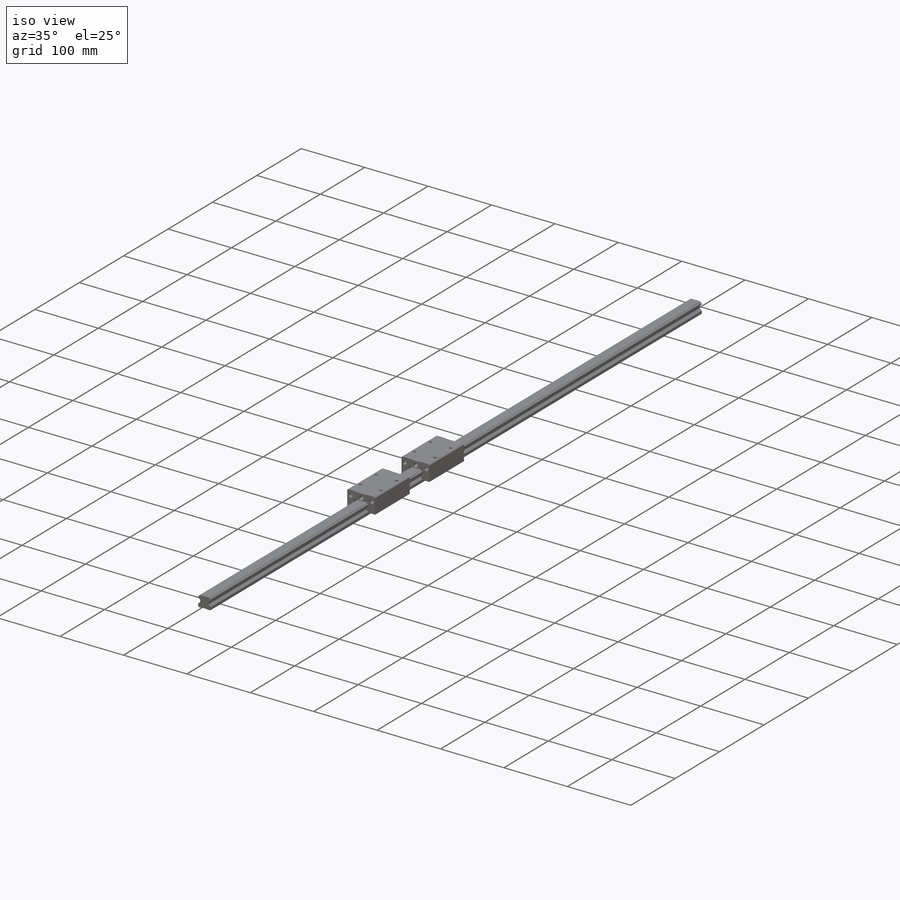
[diagram: iso view]
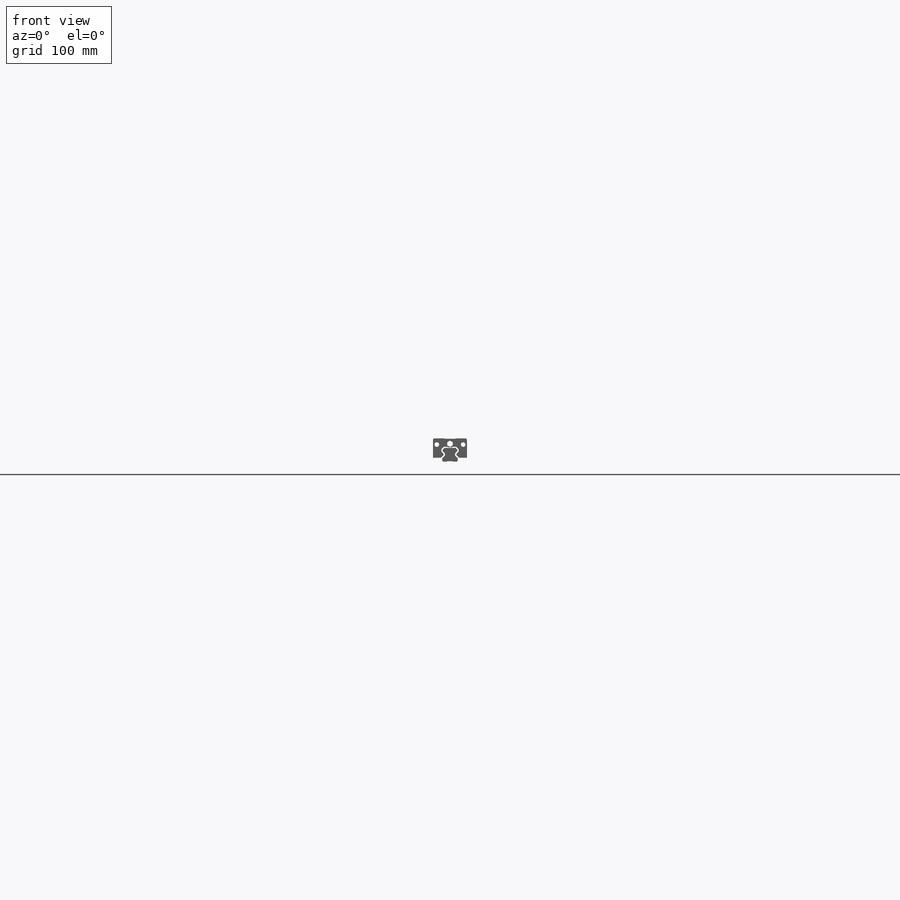
[diagram: front view]
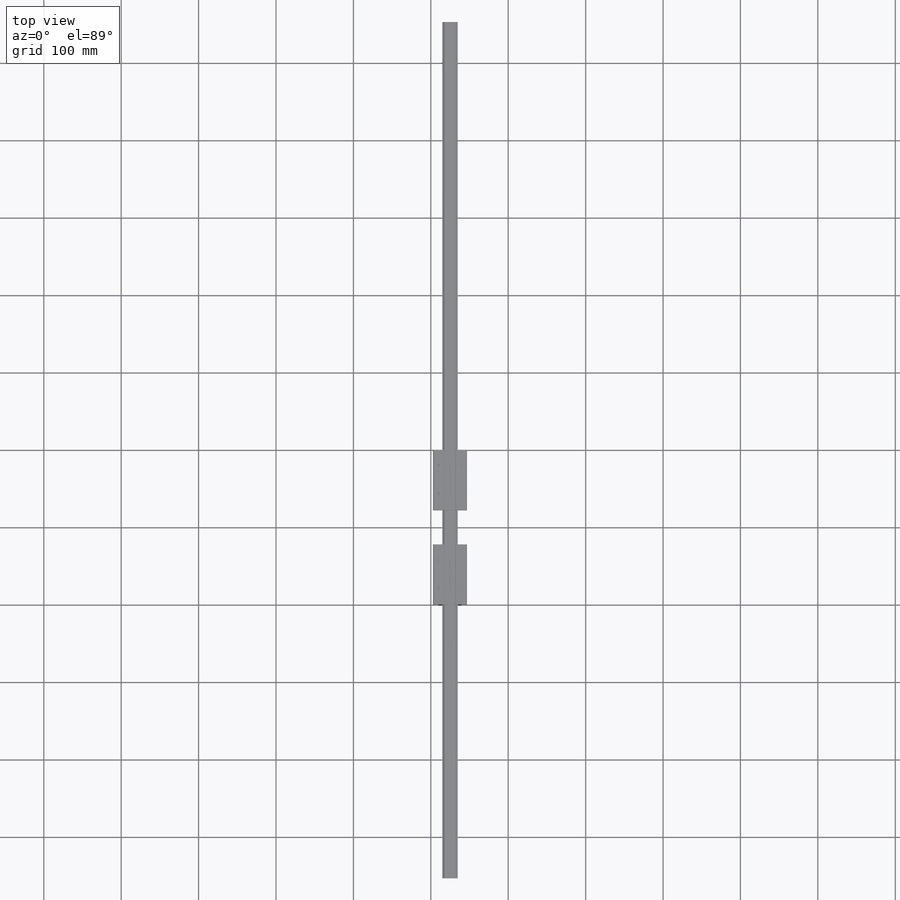
[diagram: top view]
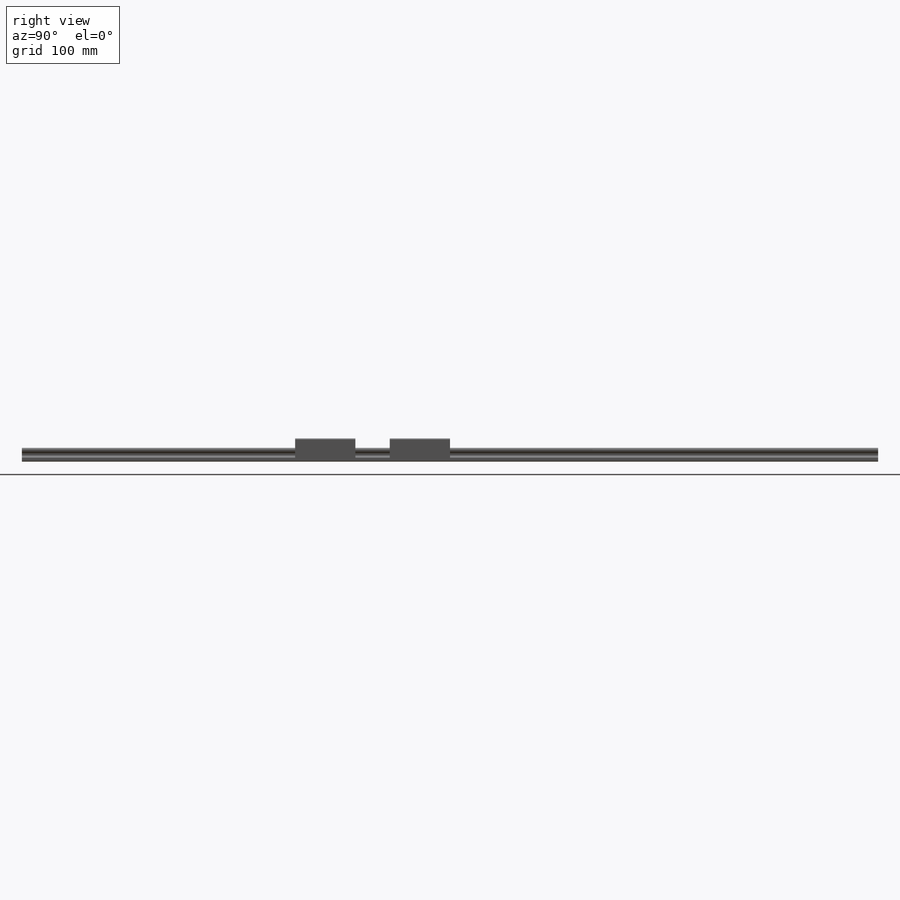
[diagram: right view]
SOLIDWORKS PART (.sldprt)
format: sldprt  version: not decoded by parser v0  size: 784,384 bytes
history: native  units: mm
features: sketch x3, extrude x2, move_body x2, material x1, cut_extrude x1 (+13 scaffold rows collapsed)
feature tree (22):
  scaffold x13  (default folders/planes/origin — collapsed)
  material  "7079 Alloy"
  sketch  "Sketch1"  dims[c1.D1=6.3mm c2.D1=~0.65535deg c3.D1=44.0mm]
  extrude  "Extrude1"  Depth=1106mm
  extrude  "Extrude2"  [1 undecoded]
  sketch  "Sketch1<4>"  dims[D1=77.8mm]
  sketch  "Sketch2"  dims[c1.D1=~2.460324mm c1.D2=~1.467594mm c2.D1=32.0mm c2.D2=36.0mm]
  cut_extrude  "Cut-Extrude1"  Depth=10mm
  move_body  "Body-Move/Copy2"
  move_body  "Body-Move/Copy3"
decode coverage: 5 of 8 modeling features carry decoded parameters
note: ~ marks probable driven/reference dimensions
note: 1 parameter value undecoded
note: suppression state not decoded; provenance and decode notes live in map.json
